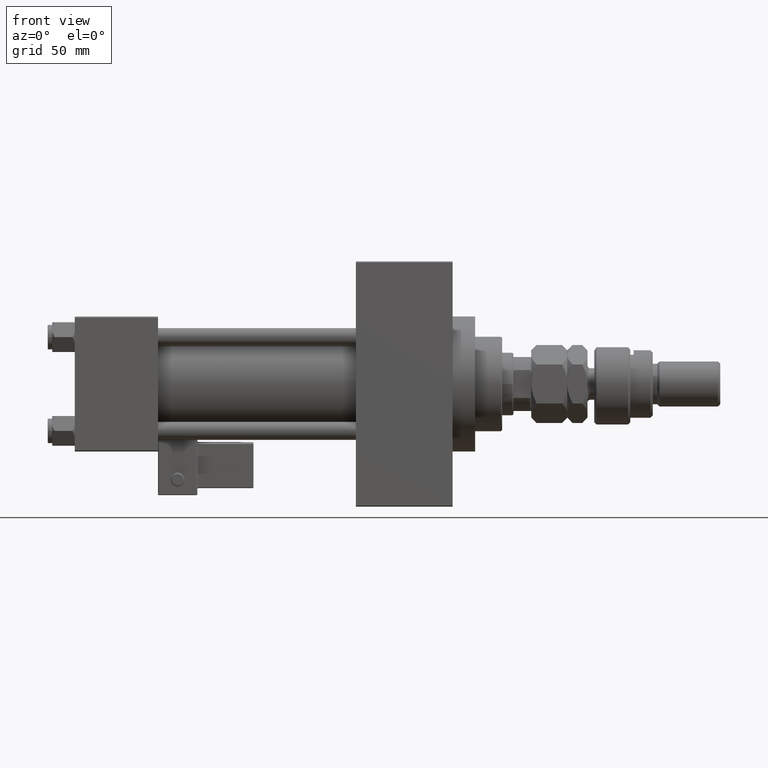
[diagram: clean part render]
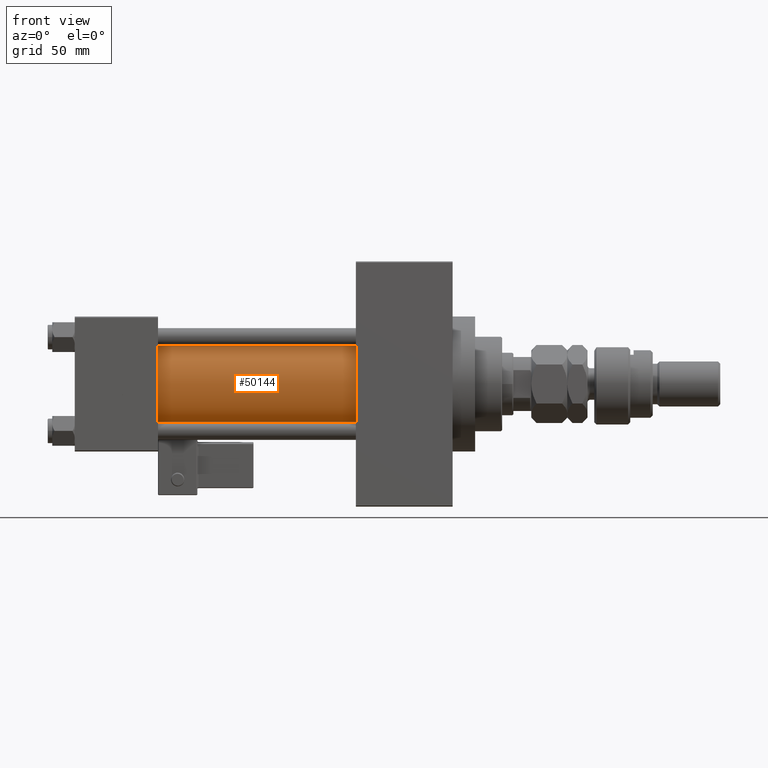
[diagram: same view with one face highlighted and labeled with its STEP entity id]
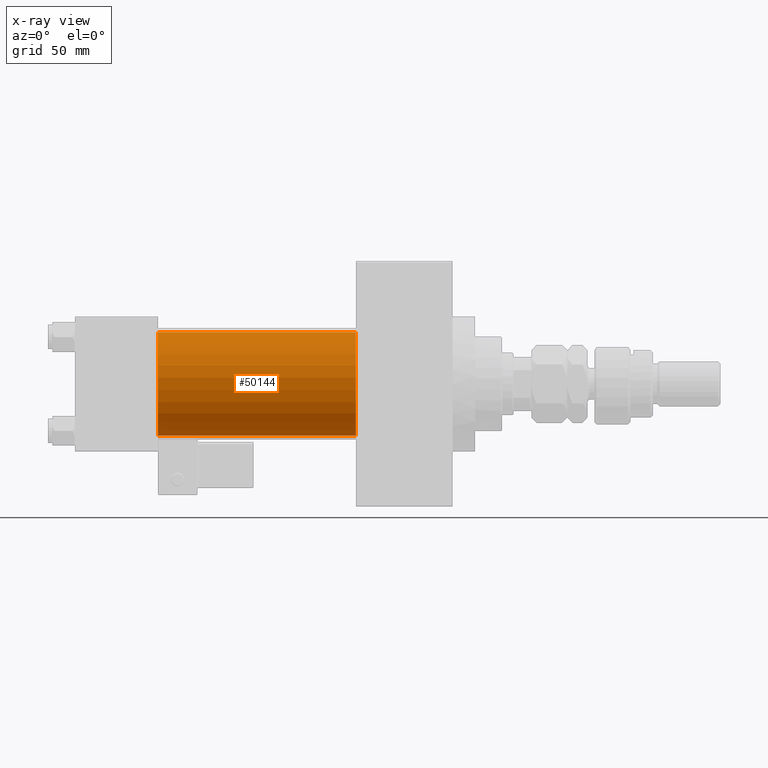
[diagram: x-ray of the same camera — body ghosted, the highlighted face saturated]
A machine part, front view. The second image highlights one B-rep face of the part: STEP entity #50144.
The next image is the same camera in x-ray: the body ghosted, the highlighted face saturated — about 0% of this face is hidden behind the body in this view.
In plain terms, the highlighted cylindrical surface (partial cylindrical patch) has radius 23 mm, axis along (-1, -0, -0).
Its self-contained STEP definition (entity closure, byte-faithful):
#5488 = AXIS2_PLACEMENT_3D ( 'NONE', #15899, #11734, #41305 ) ;
#9454 = CARTESIAN_POINT ( 'NONE',  ( 125.0000000000000000, -2.602085213965210642E-15, 23.00000000000000000 ) ) ;
#11734 = DIRECTION ( 'NONE',  ( 1.000000000000000000, 0.000000000000000000, 0.000000000000000000 ) ) ;
#11883 = VERTEX_POINT ( 'NONE', #38394 ) ;
#12394 = AXIS2_PLACEMENT_3D ( 'NONE', #29272, #24873, #12700 ) ;
#12700 = DIRECTION ( 'NONE',  ( 0.000000000000000000, 0.000000000000000000, 1.000000000000000000 ) ) ;
#13799 = VECTOR ( 'NONE', #46937, 1000.000000000000000 ) ;
#14431 = ORIENTED_EDGE ( 'NONE', *, *, #21035, .F. ) ;
#15899 = CARTESIAN_POINT ( 'NONE',  ( 125.0000000000000000, -2.602085213965210642E-15, 0.000000000000000000 ) ) ;
#16225 = CARTESIAN_POINT ( 'NONE',  ( 37.00000000000000711, -2.602085213965210642E-15, 23.00000000000000000 ) ) ;
#16926 = ORIENTED_EDGE ( 'NONE', *, *, #52824, .F. ) ;
#18234 = ORIENTED_EDGE ( 'NONE', *, *, #32100, .T. ) ;
#21035 = EDGE_CURVE ( 'NONE', #11883, #28593, #38939, .T. ) ;
#21712 = CARTESIAN_POINT ( 'NONE',  ( 125.0000000000000000, -2.602085213965210642E-15, 23.00000000000000000 ) ) ;
#24557 = DIRECTION ( 'NONE',  ( -1.000000000000000000, -0.000000000000000000, -0.000000000000000000 ) ) ;
#24873 = DIRECTION ( 'NONE',  ( 1.000000000000000000, -0.000000000000000000, 0.000000000000000000 ) ) ;
#25816 = AXIS2_PLACEMENT_3D ( 'NONE', #40317, #24557, #36160 ) ;
#27263 = VECTOR ( 'NONE', #35143, 1000.000000000000000 ) ;
#27599 = FACE_OUTER_BOUND ( 'NONE', #30489, .T. ) ;
#28593 = VERTEX_POINT ( 'NONE', #41285 ) ;
#29272 = CARTESIAN_POINT ( 'NONE',  ( 37.00000000000000711, -2.602085213965210642E-15, 0.000000000000000000 ) ) ;
#30489 = EDGE_LOOP ( 'NONE', ( #14431, #16926, #48354, #18234 ) ) ;
#32100 = EDGE_CURVE ( 'NONE', #48044, #28593, #52066, .T. ) ;
#35143 = DIRECTION ( 'NONE',  ( -1.000000000000000000, -0.000000000000000000, -0.000000000000000000 ) ) ;
#35690 = LINE ( 'NONE', #9454, #27263 ) ;
#36160 = DIRECTION ( 'NONE',  ( 0.000000000000000000, 0.000000000000000000, 1.000000000000000000 ) ) ;
#38394 = CARTESIAN_POINT ( 'NONE',  ( 125.0000000000000000, 2.146024240737016609E-16, -23.00000000000000000 ) ) ;
#38939 = LINE ( 'NONE', #46663, #13799 ) ;
#40317 = CARTESIAN_POINT ( 'NONE',  ( 125.0000000000000000, -2.602085213965210642E-15, 0.000000000000000000 ) ) ;
#40433 = VERTEX_POINT ( 'NONE', #21712 ) ;
#41285 = CARTESIAN_POINT ( 'NONE',  ( 37.00000000000000711, 2.146024240737016609E-16, -23.00000000000000000 ) ) ;
#41305 = DIRECTION ( 'NONE',  ( 0.000000000000000000, 0.000000000000000000, -1.000000000000000000 ) ) ;
#43283 = EDGE_CURVE ( 'NONE', #40433, #48044, #35690, .T. ) ;
#43428 = CIRCLE ( 'NONE', #5488, 23.00000000000000000 ) ;
#44462 = CYLINDRICAL_SURFACE ( 'NONE', #25816, 23.00000000000000000 ) ;
#46663 = CARTESIAN_POINT ( 'NONE',  ( 125.0000000000000000, 2.146024240737016609E-16, -23.00000000000000000 ) ) ;
#46937 = DIRECTION ( 'NONE',  ( -1.000000000000000000, -0.000000000000000000, -0.000000000000000000 ) ) ;
#48044 = VERTEX_POINT ( 'NONE', #16225 ) ;
#48354 = ORIENTED_EDGE ( 'NONE', *, *, #43283, .T. ) ;
#50144 = ADVANCED_FACE ( 'NONE', ( #27599 ), #44462, .T. ) ;
#52066 = CIRCLE ( 'NONE', #12394, 23.00000000000000000 ) ;
#52824 = EDGE_CURVE ( 'NONE', #40433, #11883, #43428, .T. ) ;